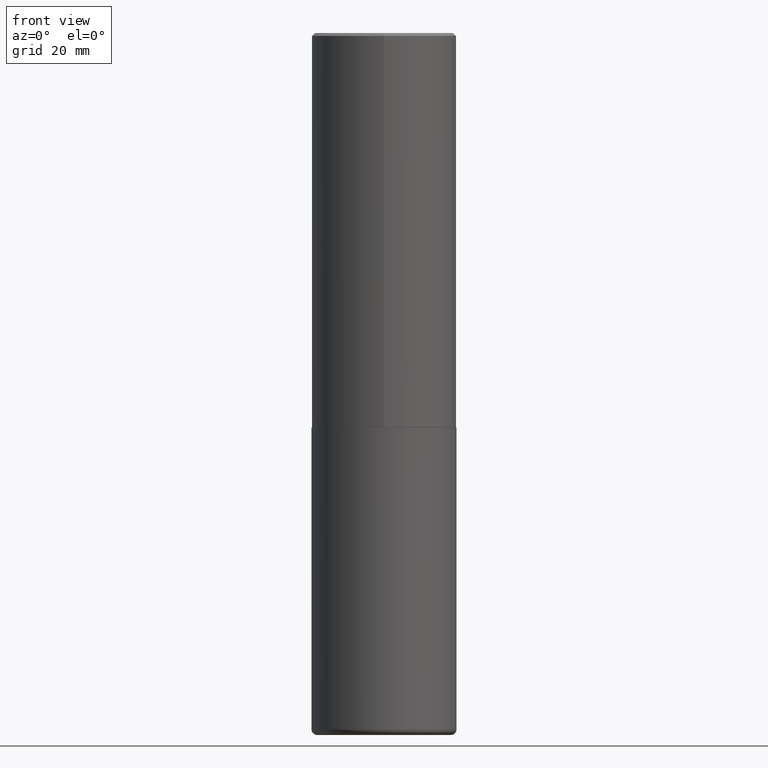
[diagram: clean part render]
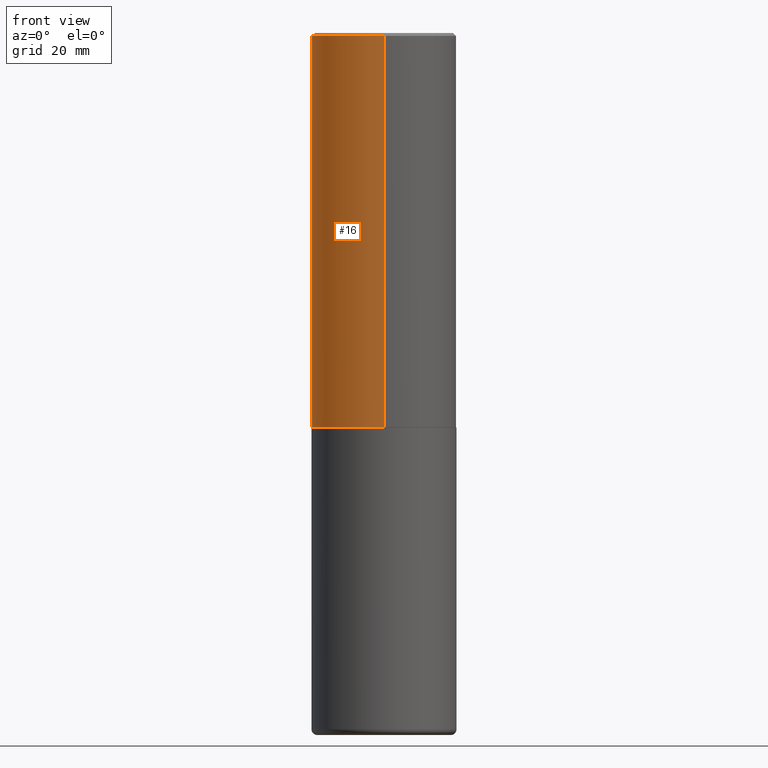
[diagram: same view with one face highlighted and labeled with its STEP entity id]
A machine part, front view. The second image highlights one B-rep face of the part: STEP entity #16.
In plain terms, the highlighted cylindrical surface (partial cylindrical patch) has radius 12.5006 mm, axis along (-0, 0, 1).
Its self-contained STEP definition (entity closure, byte-faithful):
#12 = EDGE_CURVE ( 'NONE', #15, #331, #271, .T. ) ;
#14 = ORIENTED_EDGE ( 'NONE', *, *, #204, .F. ) ;
#15 = VERTEX_POINT ( 'NONE', #297 ) ;
#16 = ADVANCED_FACE ( 'NONE', ( #208 ), #336, .T. ) ;
#36 = AXIS2_PLACEMENT_3D ( 'NONE', #291, #389, #137 ) ;
#55 = AXIS2_PLACEMENT_3D ( 'NONE', #211, #334, #151 ) ;
#67 = EDGE_CURVE ( 'NONE', #331, #322, #244, .T. ) ;
#113 = ORIENTED_EDGE ( 'NONE', *, *, #12, .T. ) ;
#137 = DIRECTION ( 'NONE',  ( -6.982962677686265922E-15, -1.000000000000000000, 3.486624039460257331E-15 ) ) ;
#151 = DIRECTION ( 'NONE',  ( -6.982962677686265922E-15, -1.000000000000000000, 3.489119658767506053E-15 ) ) ;
#158 = AXIS2_PLACEMENT_3D ( 'NONE', #233, #301, #369 ) ;
#160 = CARTESIAN_POINT ( 'NONE',  ( -3.436665081823296565E-15, -0.4921500000000000874, 1.717170240062428491E-15 ) ) ;
#165 = ORIENTED_EDGE ( 'NONE', *, *, #67, .T. ) ;
#202 = VERTEX_POINT ( 'NONE', #221 ) ;
#204 = EDGE_CURVE ( 'NONE', #15, #202, #242, .T. ) ;
#208 = FACE_OUTER_BOUND ( 'NONE', #300, .T. ) ;
#211 = CARTESIAN_POINT ( 'NONE',  ( 0.000000000000000000, 0.000000000000000000, 0.000000000000000000 ) ) ;
#221 = CARTESIAN_POINT ( 'NONE',  ( 3.436665081823295777E-15, 0.4921499999999998098, -0.02000000000000182188 ) ) ;
#233 = CARTESIAN_POINT ( 'NONE',  ( 6.548977080718662055E-29, -9.337582030793598206E-15, -2.676199999999999690 ) ) ;
#242 = LINE ( 'NONE', #411, #351 ) ;
#244 = LINE ( 'NONE', #160, #285 ) ;
#247 = DIRECTION ( 'NONE',  ( -2.447117958567619178E-29, 3.489119658767506053E-15, 1.000000000000000000 ) ) ;
#271 = CIRCLE ( 'NONE', #158, 0.4921500000000002539 ) ;
#274 = EDGE_CURVE ( 'NONE', #202, #322, #337, .T. ) ;
#278 = DIRECTION ( 'NONE',  ( -2.447117958567619178E-29, 3.489119658767506053E-15, 1.000000000000000000 ) ) ;
#285 = VECTOR ( 'NONE', #247, 39.37007874015748143 ) ;
#291 = CARTESIAN_POINT ( 'NONE',  ( 4.894235917135264524E-31, -6.978239317535049922E-17, -0.02000000000000010797 ) ) ;
#297 = CARTESIAN_POINT ( 'NONE',  ( 3.496936074043367212E-15, 0.4921499999999909281, -2.676200000000001467 ) ) ;
#300 = EDGE_LOOP ( 'NONE', ( #14, #113, #165, #328 ) ) ;
#301 = DIRECTION ( 'NONE',  ( -2.447117958567619178E-29, 3.489119658767506053E-15, 1.000000000000000000 ) ) ;
#322 = VERTEX_POINT ( 'NONE', #325 ) ;
#325 = CARTESIAN_POINT ( 'NONE',  ( -3.376394089603257868E-15, -0.4921499999999999764, -0.01999999999999839059 ) ) ;
#328 = ORIENTED_EDGE ( 'NONE', *, *, #274, .F. ) ;
#331 = VERTEX_POINT ( 'NONE', #394 ) ;
#334 = DIRECTION ( 'NONE',  ( -2.447117958567619178E-29, 3.489119658767506053E-15, 1.000000000000000000 ) ) ;
#336 = CYLINDRICAL_SURFACE ( 'NONE', #55, 0.4921500000000000874 ) ;
#337 = CIRCLE ( 'NONE', #36, 0.4921499999999999209 ) ;
#351 = VECTOR ( 'NONE', #278, 39.37007874015748143 ) ;
#369 = DIRECTION ( 'NONE',  ( -6.982962677686266711E-15, -1.000000000000000000, 3.330506545156064285E-15 ) ) ;
#389 = DIRECTION ( 'NONE',  ( -2.447117958567619178E-29, 3.489119658767506053E-15, 1.000000000000000000 ) ) ;
#394 = CARTESIAN_POINT ( 'NONE',  ( -3.436665081823232273E-15, -0.4921500000000095798, -2.676199999999997914 ) ) ;
#411 = CARTESIAN_POINT ( 'NONE',  ( 3.496936074043333291E-15, 0.4921500000000000874, -1.717170240062428491E-15 ) ) ;